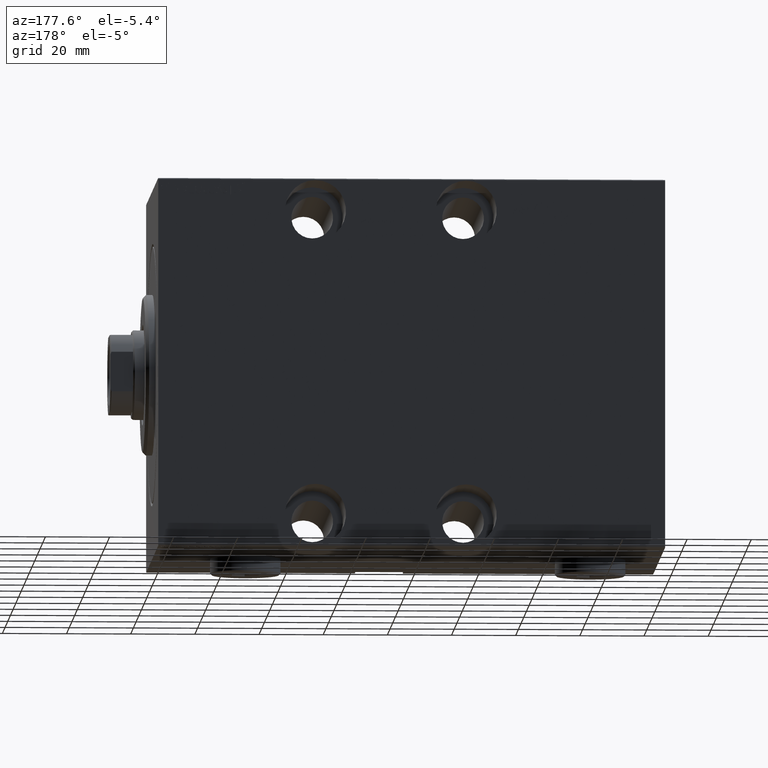
[diagram: clean part render]
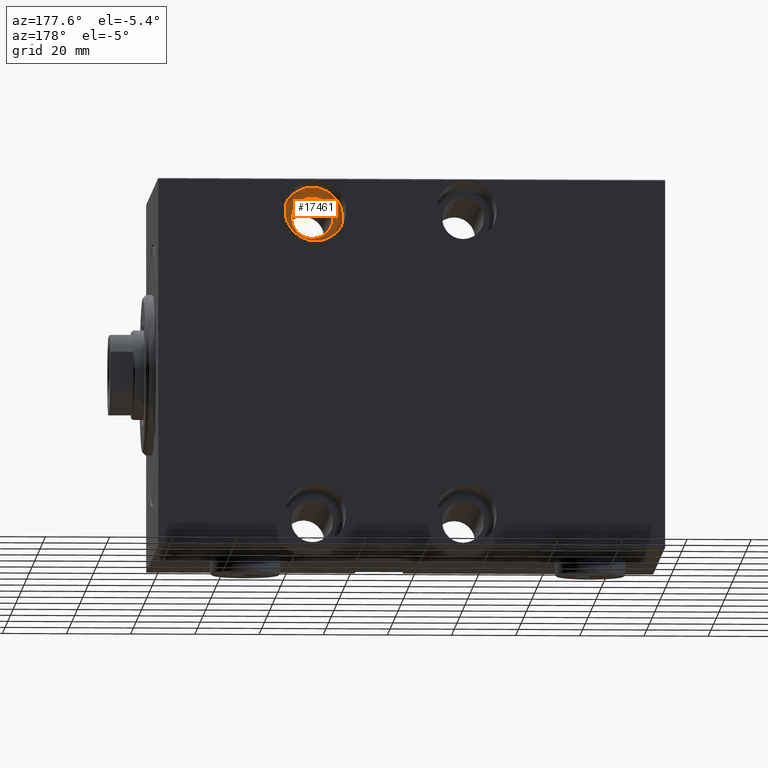
[diagram: same view with one face highlighted and labeled with its STEP entity id]
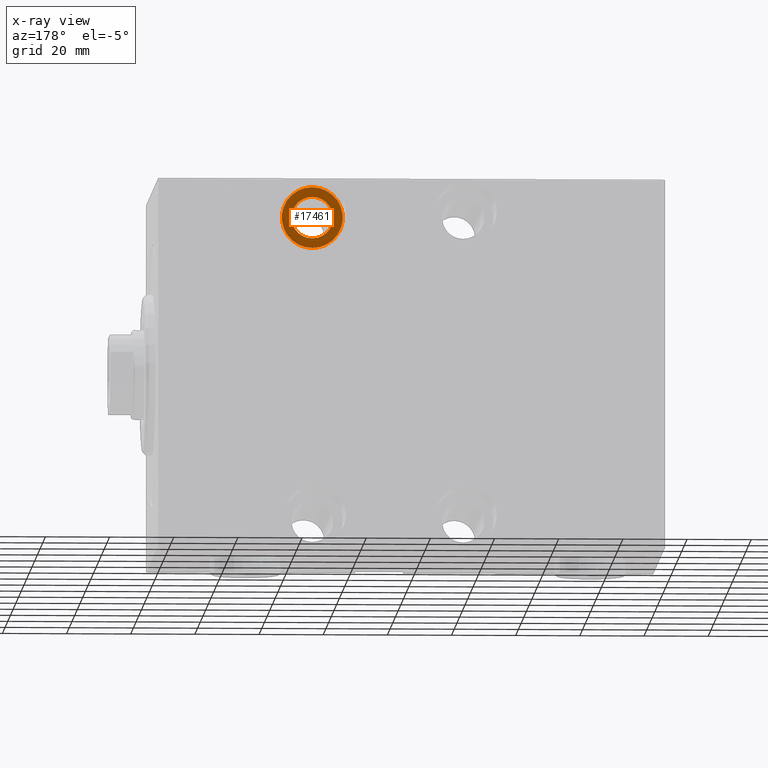
[diagram: x-ray of the same camera — body ghosted, the highlighted face saturated]
A machine part, auxiliary view. The second image highlights one B-rep face of the part: STEP entity #17461.
The next image is the same camera in x-ray: the body ghosted, the highlighted face saturated — about 0% of this face is hidden behind the body in this view.
In plain terms, the highlighted planar face has unit normal (-0, 1, 0).
Its self-contained STEP definition (entity closure, byte-faithful):
#263 = CARTESIAN_POINT ( 'NONE',  ( 48.99999999999998579, -20.99999999999999645, 41.00000000000000711 ) ) ;
#2358 = AXIS2_PLACEMENT_3D ( 'NONE', #31049, #27935, #41429 ) ;
#3827 = VERTEX_POINT ( 'NONE', #40994 ) ;
#4561 = AXIS2_PLACEMENT_3D ( 'NONE', #30055, #20528, #33824 ) ;
#6058 = ORIENTED_EDGE ( 'NONE', *, *, #12888, .T. ) ;
#6586 = CIRCLE ( 'NONE', #2358, 9.500000000000001776 ) ;
#9325 = EDGE_CURVE ( 'NONE', #3827, #29596, #6586, .T. ) ;
#9512 = FACE_BOUND ( 'NONE', #25232, .T. ) ;
#10556 = DIRECTION ( 'NONE',  ( 0.000000000000000000, 0.000000000000000000, -1.000000000000000000 ) ) ;
#11044 = AXIS2_PLACEMENT_3D ( 'NONE', #26343, #29448, #13059 ) ;
#12355 = DIRECTION ( 'NONE',  ( 0.000000000000000000, 0.000000000000000000, -1.000000000000000000 ) ) ;
#12888 = EDGE_CURVE ( 'NONE', #28719, #18425, #30739, .T. ) ;
#13059 = DIRECTION ( 'NONE',  ( 0.000000000000000000, -0.000000000000000000, -1.000000000000000000 ) ) ;
#13292 = FACE_OUTER_BOUND ( 'NONE', #16823, .T. ) ;
#14591 = CIRCLE ( 'NONE', #40003, 6.499999999999999112 ) ;
#15092 = ORIENTED_EDGE ( 'NONE', *, *, #9325, .T. ) ;
#15818 = AXIS2_PLACEMENT_3D ( 'NONE', #17212, #27391, #10556 ) ;
#16617 = PLANE ( 'NONE',  #11044 ) ;
#16823 = EDGE_LOOP ( 'NONE', ( #18173, #15092 ) ) ;
#17212 = CARTESIAN_POINT ( 'NONE',  ( 48.99999999999998579, -20.99999999999999645, 47.50000000000000711 ) ) ;
#17461 = ADVANCED_FACE ( 'NONE', ( #13292, #9512 ), #16617, .T. ) ;
#18173 = ORIENTED_EDGE ( 'NONE', *, *, #27965, .T. ) ;
#18425 = VERTEX_POINT ( 'NONE', #263 ) ;
#20528 = DIRECTION ( 'NONE',  ( -0.000000000000000000, 1.000000000000000000, -0.000000000000000000 ) ) ;
#21731 = CARTESIAN_POINT ( 'NONE',  ( 48.99999999999998579, -20.99999999999999645, 38.00000000000000711 ) ) ;
#21897 = CARTESIAN_POINT ( 'NONE',  ( 48.99999999999998579, -20.99999999999999645, 47.50000000000000711 ) ) ;
#25232 = EDGE_LOOP ( 'NONE', ( #6058, #33939 ) ) ;
#26080 = DIRECTION ( 'NONE',  ( -0.000000000000000000, 1.000000000000000000, -0.000000000000000000 ) ) ;
#26343 = CARTESIAN_POINT ( 'NONE',  ( 0.000000000000000000, -20.99999999999999645, 0.000000000000000000 ) ) ;
#27391 = DIRECTION ( 'NONE',  ( 0.000000000000000000, -1.000000000000000000, 0.000000000000000000 ) ) ;
#27935 = DIRECTION ( 'NONE',  ( 0.000000000000000000, -1.000000000000000000, 0.000000000000000000 ) ) ;
#27965 = EDGE_CURVE ( 'NONE', #29596, #3827, #39841, .T. ) ;
#28518 = CARTESIAN_POINT ( 'NONE',  ( 48.99999999999998579, -20.99999999999999645, 54.00000000000000711 ) ) ;
#28719 = VERTEX_POINT ( 'NONE', #28518 ) ;
#29448 = DIRECTION ( 'NONE',  ( 0.000000000000000000, -1.000000000000000000, 0.000000000000000000 ) ) ;
#29596 = VERTEX_POINT ( 'NONE', #21731 ) ;
#30055 = CARTESIAN_POINT ( 'NONE',  ( 48.99999999999998579, -20.99999999999999645, 47.50000000000000711 ) ) ;
#30739 = CIRCLE ( 'NONE', #4561, 6.499999999999999112 ) ;
#31049 = CARTESIAN_POINT ( 'NONE',  ( 48.99999999999998579, -20.99999999999999645, 47.50000000000000711 ) ) ;
#33802 = EDGE_CURVE ( 'NONE', #18425, #28719, #14591, .T. ) ;
#33824 = DIRECTION ( 'NONE',  ( 0.000000000000000000, 0.000000000000000000, -1.000000000000000000 ) ) ;
#33939 = ORIENTED_EDGE ( 'NONE', *, *, #33802, .T. ) ;
#39841 = CIRCLE ( 'NONE', #15818, 9.500000000000001776 ) ;
#40003 = AXIS2_PLACEMENT_3D ( 'NONE', #21897, #26080, #12355 ) ;
#40994 = CARTESIAN_POINT ( 'NONE',  ( 48.99999999999998579, -20.99999999999999645, 57.00000000000000711 ) ) ;
#41429 = DIRECTION ( 'NONE',  ( 0.000000000000000000, 0.000000000000000000, -1.000000000000000000 ) ) ;